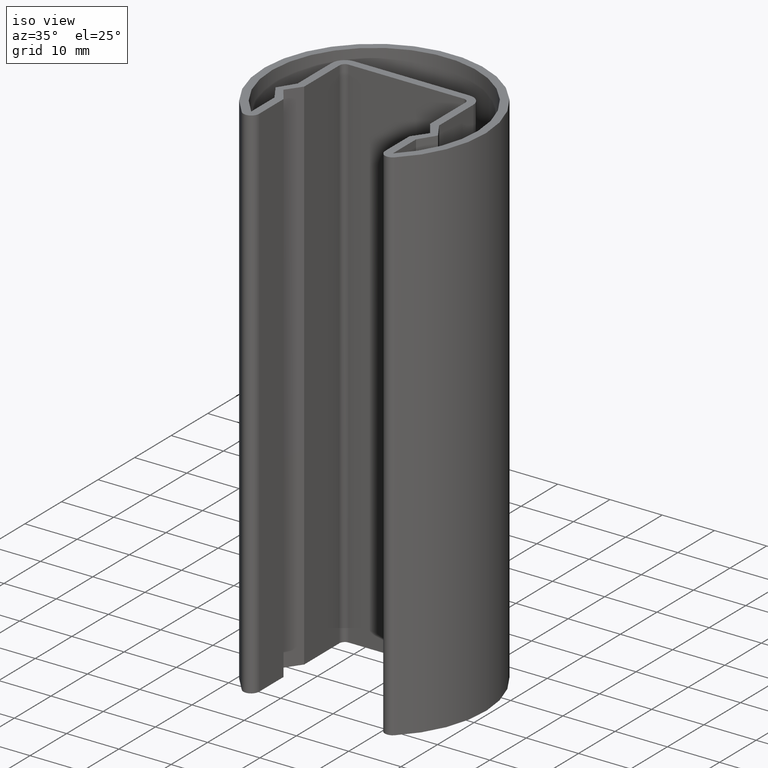
[diagram: clean part render]
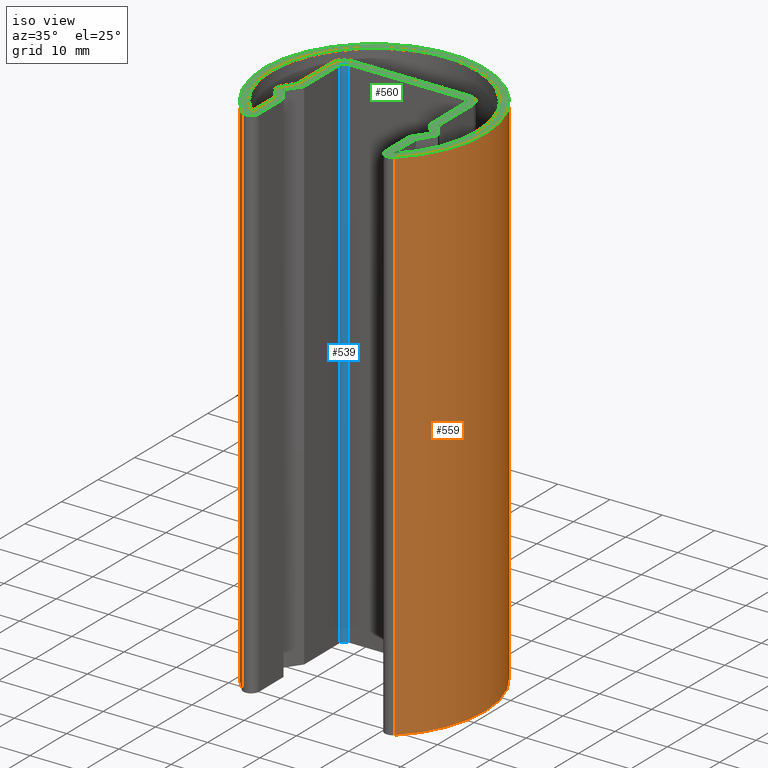
[diagram: same view with three faces highlighted in distinct colors, each labeled with its STEP entity id]
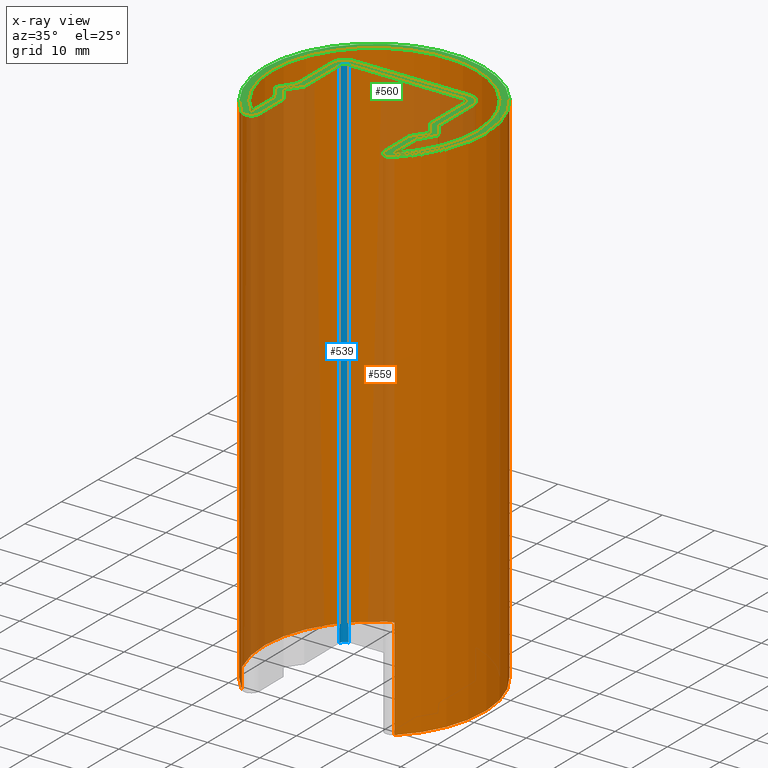
[diagram: x-ray of the same camera — body ghosted, the three highlighted faces saturated]
A machine part, iso view with three faces highlighted in distinct colors.
The next image is the same camera in x-ray (body ghosted, the three faces saturated) — at least one of them is partly hidden behind the body in this view.
Their STEP definitions:

[orange] entity #559 — the highlighted cylindrical surface (partial cylindrical patch) has radius 21.2 mm, axis along (0, 0, -1).
#41=LINE('',#780,#103);
#71=LINE('',#850,#133);
#103=VECTOR('',#628,1000.);
#133=VECTOR('',#692,1000.);
#264=ORIENTED_EDGE('',*,*,#396,.T.);
#265=ORIENTED_EDGE('',*,*,#323,.F.);
#266=ORIENTED_EDGE('',*,*,#397,.F.);
#267=ORIENTED_EDGE('',*,*,#358,.T.);
#323=EDGE_CURVE('',#401,#398,#41,.T.);
#358=EDGE_CURVE('',#425,#424,#71,.T.);
#396=EDGE_CURVE('',#424,#398,#464,.T.);
#397=EDGE_CURVE('',#425,#401,#465,.T.);
#398=VERTEX_POINT('',#774);
#401=VERTEX_POINT('',#779);
#424=VERTEX_POINT('',#849);
#425=VERTEX_POINT('',#851);
#464=CIRCLE('',#615,21.2);
#465=CIRCLE('',#616,21.2);
#491=EDGE_LOOP('',(#264,#265,#266,#267));
#521=FACE_BOUND('',#491,.T.);
#533=CYLINDRICAL_SURFACE('',#614,21.2);
#559=ADVANCED_FACE('',(#521),#533,.T.);
#614=AXIS2_PLACEMENT_3D('',#925,#761,#762);
#615=AXIS2_PLACEMENT_3D('',#926,#763,#764);
#616=AXIS2_PLACEMENT_3D('',#927,#765,#766);
#628=DIRECTION('',(0.,0.,-1.));
#692=DIRECTION('',(0.,0.,-1.));
#761=DIRECTION('',(0.,0.,-1.));
#762=DIRECTION('',(-1.,0.,0.));
#763=DIRECTION('',(0.,0.,1.));
#764=DIRECTION('',(0.,-1.,0.));
#765=DIRECTION('',(0.,0.,1.));
#766=DIRECTION('',(0.,-1.,0.));
#774=CARTESIAN_POINT('',(-14.5817258883245,-24.0888258315085,-50.));
#779=CARTESIAN_POINT('',(-14.5817258883245,-24.0888258315085,50.));
#780=CARTESIAN_POINT('',(-14.5817258883245,-24.0888258315085,50.));
#849=CARTESIAN_POINT('',(14.5817258883252,-24.0888258315085,-50.));
#850=CARTESIAN_POINT('',(14.5817258883252,-24.0888258315085,50.));
#851=CARTESIAN_POINT('',(14.5817258883252,-24.0888258315085,50.));
#925=CARTESIAN_POINT('',(3.53883589099269E-13,-8.70008741285458,50.));
#926=CARTESIAN_POINT('',(3.53883589099269E-13,-8.70008741285458,-50.));
#927=CARTESIAN_POINT('',(3.53883589099269E-13,-8.70008741285458,50.));

[blue] entity #539 — the highlighted cylindrical surface (edge-blend (fillet) strip) has radius 1 mm, axis along (0, 0, -1).
#52=LINE('',#802,#114);
#54=LINE('',#808,#116);
#114=VECTOR('',#647,1000.);
#116=VECTOR('',#653,1000.);
#184=ORIENTED_EDGE('',*,*,#336,.T.);
#185=ORIENTED_EDGE('',*,*,#337,.F.);
#186=ORIENTED_EDGE('',*,*,#338,.F.);
#187=ORIENTED_EDGE('',*,*,#334,.T.);
#334=EDGE_CURVE('',#409,#408,#52,.T.);
#336=EDGE_CURVE('',#408,#410,#452,.T.);
#337=EDGE_CURVE('',#411,#410,#54,.T.);
#338=EDGE_CURVE('',#409,#411,#453,.T.);
#408=VERTEX_POINT('',#801);
#409=VERTEX_POINT('',#803);
#410=VERTEX_POINT('',#807);
#411=VERTEX_POINT('',#809);
#452=CIRCLE('',#583,1.);
#453=CIRCLE('',#584,1.);
#471=EDGE_LOOP('',(#184,#185,#186,#187));
#501=FACE_BOUND('',#471,.T.);
#527=CYLINDRICAL_SURFACE('',#582,1.);
#539=ADVANCED_FACE('',(#501),#527,.F.);
#582=AXIS2_PLACEMENT_3D('',#805,#649,#650);
#583=AXIS2_PLACEMENT_3D('',#806,#651,#652);
#584=AXIS2_PLACEMENT_3D('',#810,#654,#655);
#647=DIRECTION('',(0.,0.,-1.));
#649=DIRECTION('',(0.,0.,-1.));
#650=DIRECTION('',(-1.,0.,0.));
#651=DIRECTION('',(0.,0.,-1.));
#652=DIRECTION('',(1.,0.,0.));
#653=DIRECTION('',(0.,0.,-1.));
#654=DIRECTION('',(0.,0.,-1.));
#655=DIRECTION('',(1.,0.,0.));
#801=CARTESIAN_POINT('',(-12.0500000000004,-1.,-50.));
#802=CARTESIAN_POINT('',(-12.0500000000004,-1.,50.));
#803=CARTESIAN_POINT('',(-12.0500000000004,-1.,50.));
#805=CARTESIAN_POINT('',(-11.0500000000004,-1.,50.));
#806=CARTESIAN_POINT('',(-11.0500000000004,-1.,-50.));
#807=CARTESIAN_POINT('',(-11.0500000000004,-8.67361737988404E-16,-50.));
#808=CARTESIAN_POINT('',(-11.0500000000004,-8.67361737988404E-16,50.));
#809=CARTESIAN_POINT('',(-11.0500000000004,-8.67361737988404E-16,50.));
#810=CARTESIAN_POINT('',(-11.0500000000004,-1.,50.));

[green] entity #560 — the highlighted planar face has unit normal (0, 0, 1).
#38=PLANE('',#617);
#44=LINE('',#786,#106);
#47=LINE('',#792,#109);
#50=LINE('',#798,#112);
#53=LINE('',#804,#115);
#57=LINE('',#816,#119);
#61=LINE('',#828,#123);
#64=LINE('',#834,#126);
#67=LINE('',#840,#129);
#70=LINE('',#846,#132);
#74=LINE('',#859,#136);
#78=LINE('',#867,#140);
#81=LINE('',#873,#143);
#84=LINE('',#879,#146);
#88=LINE('',#891,#150);
#92=LINE('',#903,#154);
#95=LINE('',#909,#157);
#98=LINE('',#915,#160);
#101=LINE('',#921,#163);
#106=VECTOR('',#633,1000.);
#109=VECTOR('',#638,1000.);
#112=VECTOR('',#643,1000.);
#115=VECTOR('',#648,1000.);
#119=VECTOR('',#660,1000.);
#123=VECTOR('',#672,1000.);
#126=VECTOR('',#677,1000.);
#129=VECTOR('',#682,1000.);
#132=VECTOR('',#687,1000.);
#136=VECTOR('',#699,1000.);
#140=VECTOR('',#705,1000.);
#143=VECTOR('',#710,1000.);
#146=VECTOR('',#715,1000.);
#150=VECTOR('',#727,1000.);
#154=VECTOR('',#739,1000.);
#157=VECTOR('',#744,1000.);
#160=VECTOR('',#749,1000.);
#163=VECTOR('',#754,1000.);
#268=ORIENTED_EDGE('',*,*,#362,.F.);
#269=ORIENTED_EDGE('',*,*,#366,.F.);
#270=ORIENTED_EDGE('',*,*,#369,.F.);
#271=ORIENTED_EDGE('',*,*,#372,.F.);
#272=ORIENTED_EDGE('',*,*,#375,.F.);
#273=ORIENTED_EDGE('',*,*,#378,.F.);
#274=ORIENTED_EDGE('',*,*,#381,.F.);
#275=ORIENTED_EDGE('',*,*,#384,.F.);
#276=ORIENTED_EDGE('',*,*,#387,.F.);
#277=ORIENTED_EDGE('',*,*,#390,.F.);
#278=ORIENTED_EDGE('',*,*,#393,.F.);
#279=ORIENTED_EDGE('',*,*,#395,.F.);
#280=ORIENTED_EDGE('',*,*,#322,.T.);
#281=ORIENTED_EDGE('',*,*,#326,.T.);
#282=ORIENTED_EDGE('',*,*,#329,.T.);
#283=ORIENTED_EDGE('',*,*,#332,.T.);
#284=ORIENTED_EDGE('',*,*,#335,.T.);
#285=ORIENTED_EDGE('',*,*,#338,.T.);
#286=ORIENTED_EDGE('',*,*,#341,.T.);
#287=ORIENTED_EDGE('',*,*,#344,.T.);
#288=ORIENTED_EDGE('',*,*,#347,.T.);
#289=ORIENTED_EDGE('',*,*,#350,.T.);
#290=ORIENTED_EDGE('',*,*,#353,.T.);
#291=ORIENTED_EDGE('',*,*,#356,.T.);
#292=ORIENTED_EDGE('',*,*,#359,.T.);
#293=ORIENTED_EDGE('',*,*,#397,.T.);
#322=EDGE_CURVE('',#401,#400,#451,.T.);
#326=EDGE_CURVE('',#400,#403,#44,.T.);
#329=EDGE_CURVE('',#403,#405,#47,.T.);
#332=EDGE_CURVE('',#405,#407,#50,.T.);
#335=EDGE_CURVE('',#407,#409,#53,.T.);
#338=EDGE_CURVE('',#409,#411,#453,.T.);
#341=EDGE_CURVE('',#411,#413,#57,.T.);
#344=EDGE_CURVE('',#413,#415,#455,.T.);
#347=EDGE_CURVE('',#415,#417,#61,.T.);
#350=EDGE_CURVE('',#417,#419,#64,.T.);
#353=EDGE_CURVE('',#419,#421,#67,.T.);
#356=EDGE_CURVE('',#421,#423,#70,.T.);
#359=EDGE_CURVE('',#423,#425,#457,.T.);
#362=EDGE_CURVE('',#428,#429,#74,.T.);
#366=EDGE_CURVE('',#431,#428,#78,.T.);
#369=EDGE_CURVE('',#433,#431,#81,.T.);
#372=EDGE_CURVE('',#435,#433,#84,.T.);
#375=EDGE_CURVE('',#437,#435,#459,.T.);
#378=EDGE_CURVE('',#439,#437,#88,.T.);
#381=EDGE_CURVE('',#441,#439,#461,.T.);
#384=EDGE_CURVE('',#443,#441,#92,.T.);
#387=EDGE_CURVE('',#445,#443,#95,.T.);
#390=EDGE_CURVE('',#447,#445,#98,.T.);
#393=EDGE_CURVE('',#449,#447,#101,.T.);
#395=EDGE_CURVE('',#429,#449,#463,.T.);
#397=EDGE_CURVE('',#425,#401,#465,.T.);
#400=VERTEX_POINT('',#777);
#401=VERTEX_POINT('',#779);
#403=VERTEX_POINT('',#785);
#405=VERTEX_POINT('',#791);
#407=VERTEX_POINT('',#797);
#409=VERTEX_POINT('',#803);
#411=VERTEX_POINT('',#809);
#413=VERTEX_POINT('',#815);
#415=VERTEX_POINT('',#821);
#417=VERTEX_POINT('',#827);
#419=VERTEX_POINT('',#833);
#421=VERTEX_POINT('',#839);
#423=VERTEX_POINT('',#845);
#425=VERTEX_POINT('',#851);
#428=VERTEX_POINT('',#858);
#429=VERTEX_POINT('',#860);
#431=VERTEX_POINT('',#866);
#433=VERTEX_POINT('',#872);
#435=VERTEX_POINT('',#878);
#437=VERTEX_POINT('',#884);
#439=VERTEX_POINT('',#890);
#441=VERTEX_POINT('',#896);
#443=VERTEX_POINT('',#902);
#445=VERTEX_POINT('',#908);
#447=VERTEX_POINT('',#914);
#449=VERTEX_POINT('',#920);
#451=CIRCLE('',#577,1.5);
#453=CIRCLE('',#584,1.);
#455=CIRCLE('',#588,1.);
#457=CIRCLE('',#595,1.5);
#459=CIRCLE('',#602,2.5);
#461=CIRCLE('',#606,2.5);
#463=CIRCLE('',#613,19.7);
#465=CIRCLE('',#616,21.2);
#492=EDGE_LOOP('',(#268,#269,#270,#271,#272,#273,#274,#275,#276,#277,#278,
#279));
#493=EDGE_LOOP('',(#280,#281,#282,#283,#284,#285,#286,#287,#288,#289,#290,
#291,#292,#293));
#522=FACE_BOUND('',#492,.T.);
#523=FACE_BOUND('',#493,.T.);
#560=ADVANCED_FACE('',(#522,#523),#38,.T.);
#577=AXIS2_PLACEMENT_3D('',#778,#626,#627);
#584=AXIS2_PLACEMENT_3D('',#810,#654,#655);
#588=AXIS2_PLACEMENT_3D('',#822,#666,#667);
#595=AXIS2_PLACEMENT_3D('',#852,#693,#694);
#602=AXIS2_PLACEMENT_3D('',#885,#721,#722);
#606=AXIS2_PLACEMENT_3D('',#897,#733,#734);
#613=AXIS2_PLACEMENT_3D('',#924,#759,#760);
#616=AXIS2_PLACEMENT_3D('',#927,#765,#766);
#617=AXIS2_PLACEMENT_3D('',#928,#767,#768);
#626=DIRECTION('',(0.,0.,1.));
#627=DIRECTION('',(-1.,0.,0.));
#633=DIRECTION('',(-1.04526900984522E-13,1.,0.));
#638=DIRECTION('',(-0.577350269189492,0.816496580927821,0.));
#643=DIRECTION('',(0.577350269189491,0.816496580927822,0.));
#648=DIRECTION('',(-3.58726237883263E-16,1.,0.));
#654=DIRECTION('',(0.,0.,-1.));
#655=DIRECTION('',(1.,0.,0.));
#660=DIRECTION('',(1.,-7.84942749310747E-17,0.));
#666=DIRECTION('',(0.,0.,-1.));
#667=DIRECTION('',(-1.,0.,0.));
#672=DIRECTION('',(7.33595156471255E-14,-1.,0.));
#677=DIRECTION('',(0.577350269189544,-0.816496580927784,0.));
#682=DIRECTION('',(-0.577350269189616,-0.816496580927733,0.));
#687=DIRECTION('',(5.20034333256328E-16,-1.,0.));
#693=DIRECTION('',(0.,0.,1.));
#694=DIRECTION('',(1.,0.,0.));
#699=DIRECTION('',(-1.36857011317329E-15,-1.,0.));
#705=DIRECTION('',(-0.534522483824804,-0.845154254728545,0.));
#710=DIRECTION('',(0.534522483824803,-0.845154254728546,0.));
#715=DIRECTION('',(-5.57327605012527E-16,-1.,0.));
#721=DIRECTION('',(0.,0.,-1.));
#722=DIRECTION('',(-1.,0.,0.));
#727=DIRECTION('',(1.,-7.84942749310759E-17,0.));
#733=DIRECTION('',(0.,0.,-1.));
#734=DIRECTION('',(1.,0.,0.));
#739=DIRECTION('',(-1.85775868337512E-16,1.,0.));
#744=DIRECTION('',(0.534522483824848,0.845154254728517,0.));
#749=DIRECTION('',(-0.534522483824848,0.845154254728517,0.));
#754=DIRECTION('',(2.73714022634651E-16,1.,0.));
#759=DIRECTION('',(0.,0.,1.));
#760=DIRECTION('',(0.,-1.,0.));
#765=DIRECTION('',(0.,0.,1.));
#766=DIRECTION('',(0.,-1.,0.));
#767=DIRECTION('',(0.,0.,1.));
#768=DIRECTION('',(1.,0.,0.));
#777=CARTESIAN_POINT('',(-12.0499999999997,-23.,50.));
#778=CARTESIAN_POINT('',(-13.5499999999997,-23.,50.));
#779=CARTESIAN_POINT('',(-14.5817258883245,-24.0888258315085,50.));
#785=CARTESIAN_POINT('',(-12.0500000000003,-16.3284271247462,50.));
#786=CARTESIAN_POINT('',(-12.0499999999997,-23.,50.));
#791=CARTESIAN_POINT('',(-14.0499999999996,-13.5,50.));
#792=CARTESIAN_POINT('',(-14.0499999999996,-13.5,50.));
#797=CARTESIAN_POINT('',(-12.0500000000004,-10.6715728752538,50.));
#798=CARTESIAN_POINT('',(-12.0500000000004,-10.6715728752538,50.));
#803=CARTESIAN_POINT('',(-12.0500000000004,-1.,50.));
#804=CARTESIAN_POINT('',(-12.0500000000004,-10.6715728752538,50.));
#809=CARTESIAN_POINT('',(-11.0500000000004,-8.67361737988404E-16,50.));
#810=CARTESIAN_POINT('',(-11.0500000000004,-1.,50.));
#815=CARTESIAN_POINT('',(11.0500000000004,-1.73472347597681E-15,50.));
#816=CARTESIAN_POINT('',(-11.0500000000004,0.,50.));
#821=CARTESIAN_POINT('',(12.0500000000004,-1.,50.));
#822=CARTESIAN_POINT('',(11.0500000000004,-1.,50.));
#827=CARTESIAN_POINT('',(12.0500000000011,-10.6715728752541,50.));
#828=CARTESIAN_POINT('',(12.0500000000004,-1.,50.));
#833=CARTESIAN_POINT('',(14.0500000000004,-13.4999999999999,50.));
#834=CARTESIAN_POINT('',(12.0500000000011,-10.6715728752541,50.));
#839=CARTESIAN_POINT('',(12.0500000000004,-16.3284271247462,50.));
#840=CARTESIAN_POINT('',(14.0500000000004,-13.4999999999999,50.));
#845=CARTESIAN_POINT('',(12.0500000000004,-23.,50.));
#846=CARTESIAN_POINT('',(12.0500000000004,-16.3284271247462,50.));
#851=CARTESIAN_POINT('',(14.5817258883252,-24.0888258315085,50.));
#852=CARTESIAN_POINT('',(13.5500000000004,-23.,50.));
#858=CARTESIAN_POINT('',(13.5500000000007,-16.6622776601682,50.));
#859=CARTESIAN_POINT('',(13.5500000000007,-16.6622776601682,50.));
#860=CARTESIAN_POINT('',(13.5500000000007,-22.9999999999997,50.));
#866=CARTESIAN_POINT('',(15.5500000000004,-13.5,50.));
#867=CARTESIAN_POINT('',(15.5500000000004,-13.5,50.));
#872=CARTESIAN_POINT('',(13.5500000000007,-10.3377223398318,50.));
#873=CARTESIAN_POINT('',(13.5500000000007,-10.3377223398318,50.));
#878=CARTESIAN_POINT('',(13.5500000000007,-1.,50.));
#879=CARTESIAN_POINT('',(13.5500000000007,-1.,50.));
#884=CARTESIAN_POINT('',(11.0500000000007,1.5,50.));
#885=CARTESIAN_POINT('',(11.0500000000007,-1.,50.));
#890=CARTESIAN_POINT('',(-11.0499999999997,1.5,50.));
#891=CARTESIAN_POINT('',(-11.0499999999997,1.5,50.));
#896=CARTESIAN_POINT('',(-13.5499999999996,-0.999999999999989,50.));
#897=CARTESIAN_POINT('',(-11.0499999999997,-1.,50.));
#902=CARTESIAN_POINT('',(-13.5499999999996,-10.3377223398316,50.));
#903=CARTESIAN_POINT('',(-13.5499999999996,-10.3377223398316,50.));
#908=CARTESIAN_POINT('',(-15.5499999999996,-13.5,50.));
#909=CARTESIAN_POINT('',(-13.5499999999996,-10.3377223398316,50.));
#914=CARTESIAN_POINT('',(-13.5499999999997,-16.6622776601684,50.));
#915=CARTESIAN_POINT('',(-15.5499999999996,-13.5,50.));
#920=CARTESIAN_POINT('',(-13.5499999999997,-23.,50.));
#921=CARTESIAN_POINT('',(-13.5499999999997,-23.,50.));
#924=CARTESIAN_POINT('',(3.53883589099269E-13,-8.70008741285458,50.));
#927=CARTESIAN_POINT('',(3.53883589099269E-13,-8.70008741285458,50.));
#928=CARTESIAN_POINT('',(-13.5499999999997,-23.,50.));